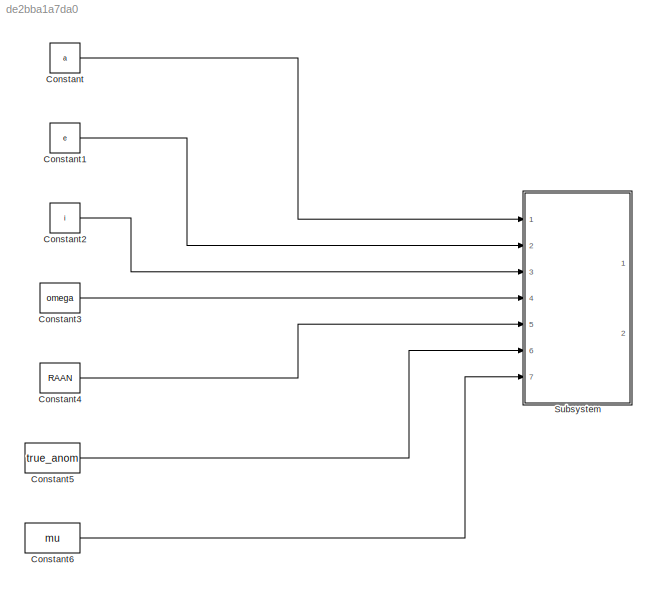
MODEL slx_de2bba1a7da0
KIND model
CONFIG AbsTol = auto
CONFIG EnableMultiTasking = off
CONFIG FixedStep = auto
CONFIG MaxStep = auto
CONFIG MinStep = auto
CONFIG RelTol = 1e-3
CONFIG SampleTimeConstraint = Unconstrained
CONFIG SolverName = VariableStepAuto
CONFIG StartTime = 0.0
CONFIG StopTime = 10.0
BLOCK [Constant] Constant
  Value = a
BLOCK [Constant] Constant1
  Value = e
BLOCK [Constant] Constant2
  Value = i
BLOCK [Constant] Constant3
  Value = omega
BLOCK [Constant] Constant4
  Value = RAAN
BLOCK [Constant] Constant5
  Value = true_anom
BLOCK [Constant] Constant6
  Value = mu
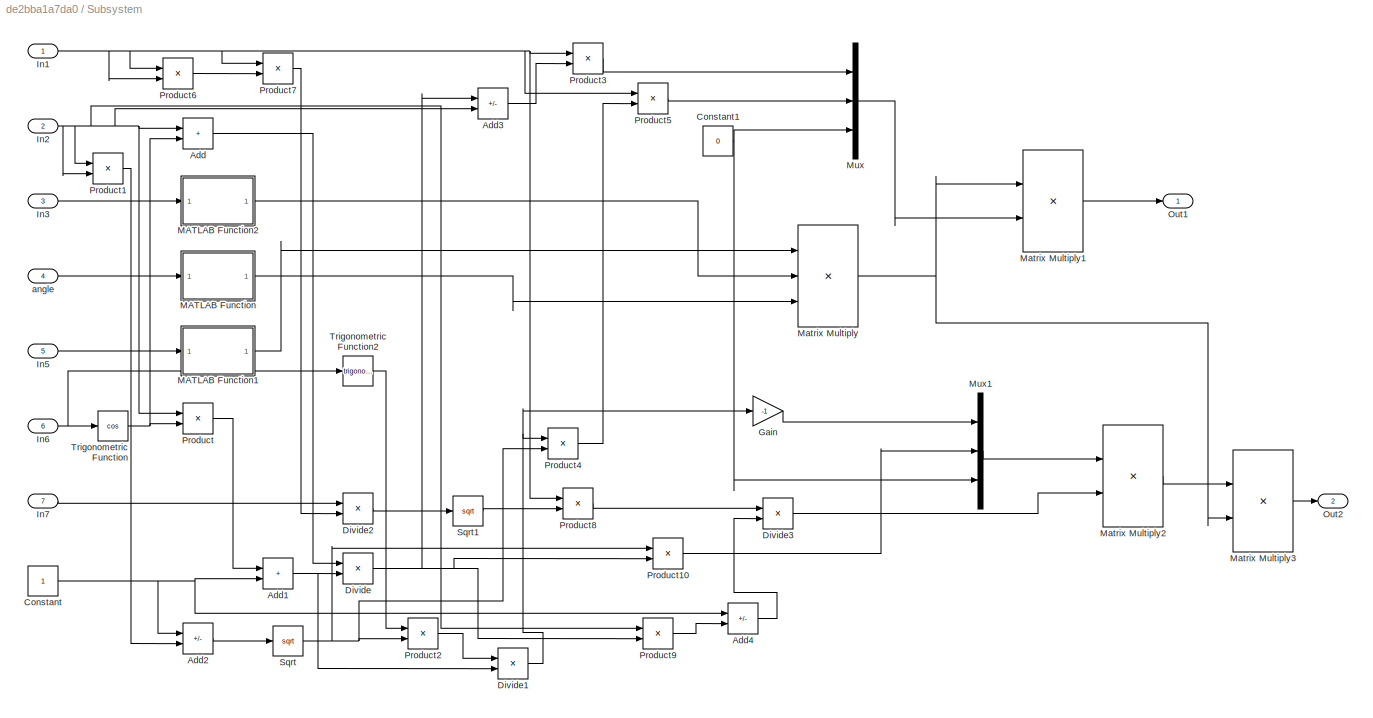
BLOCK [SubSystem] Subsystem
  Ports = [7, 2]
  RequestExecContextInheritance = off
BLOCK [Sum] Subsystem/Add
  IconShape = rectangular
  Ports = [2, 1]
BLOCK [Sum] Subsystem/Add1
  IconShape = rectangular
  Ports = [2, 1]
BLOCK [Sum] Subsystem/Add2
  IconShape = rectangular
  Inputs = +-
  Ports = [2, 1]
BLOCK [Sum] Subsystem/Add3
  IconShape = rectangular
  Inputs = +-
  Ports = [2, 1]
BLOCK [Sum] Subsystem/Add4
  IconShape = rectangular
  Inputs = +-
  Ports = [2, 1]
BLOCK [Constant] Subsystem/Constant
BLOCK [Constant] Subsystem/Constant1
  Value = 0
BLOCK [Product] Subsystem/Divide
  Inputs = */
  Ports = [2, 1]
BLOCK [Product] Subsystem/Divide1
  Inputs = */
  Ports = [2, 1]
BLOCK [Product] Subsystem/Divide2
  Inputs = */
  Ports = [2, 1]
BLOCK [Product] Subsystem/Divide3
  Inputs = */
  Ports = [2, 1]
BLOCK [Gain] Subsystem/Gain
  Gain = -1
BLOCK [Inport] Subsystem/In1
  IconDisplay = Signal name
  Unit = km
  VarSizeSig = Yes
BLOCK [Inport] Subsystem/In2
  Port = 2
BLOCK [Inport] Subsystem/In3
  Port = 3
BLOCK [Inport] Subsystem/In5
  Port = 5
BLOCK [Inport] Subsystem/In6
  Port = 6
BLOCK [Inport] Subsystem/In7
  Port = 7
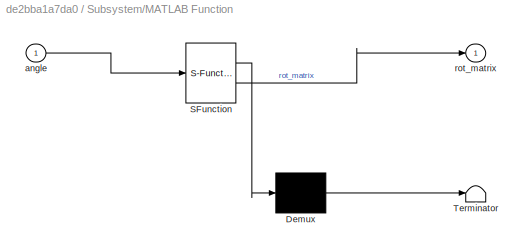
BLOCK [SubSystem] Subsystem/MATLAB Function
  ErrorFcn = Stateflow.Translate.translate
  PermitHierarchicalResolution = ExplicitOnly
  Ports = [1, 1]
  RequestExecContextInheritance = off
  SFBlockType = MATLAB Function
  TreatAsAtomicUnit = on
BLOCK [Demux] Subsystem/MATLAB Function/ Demux 
  Outputs = 1
  Ports = [1, 1]
BLOCK [S-Function] Subsystem/MATLAB Function/ SFunction 
  EnableBusSupport = off
  FunctionName = sf_sfun
  PortCounts = [1 2]
  Ports = [1, 2]
  SFcnIsStateOwnerBlock = off
  SFunctionDeploymentMode = off
  Tag = Stateflow S-Function 2
BLOCK [Terminator] Subsystem/MATLAB Function/ Terminator 
BLOCK [Inport] Subsystem/MATLAB Function/angle
BLOCK [Outport] Subsystem/MATLAB Function/rot_matrix
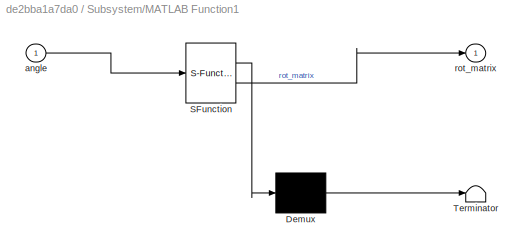
BLOCK [SubSystem] Subsystem/MATLAB Function1
  ErrorFcn = Stateflow.Translate.translate
  PermitHierarchicalResolution = ExplicitOnly
  Ports = [1, 1]
  RequestExecContextInheritance = off
  SFBlockType = MATLAB Function
  TreatAsAtomicUnit = on
BLOCK [Demux] Subsystem/MATLAB Function1/ Demux 
  Outputs = 1
  Ports = [1, 1]
BLOCK [S-Function] Subsystem/MATLAB Function1/ SFunction 
  EnableBusSupport = off
  FunctionName = sf_sfun
  PortCounts = [1 2]
  Ports = [1, 2]
  SFcnIsStateOwnerBlock = off
  SFunctionDeploymentMode = off
  Tag = Stateflow S-Function 1
BLOCK [Terminator] Subsystem/MATLAB Function1/ Terminator 
BLOCK [Inport] Subsystem/MATLAB Function1/angle
BLOCK [Outport] Subsystem/MATLAB Function1/rot_matrix
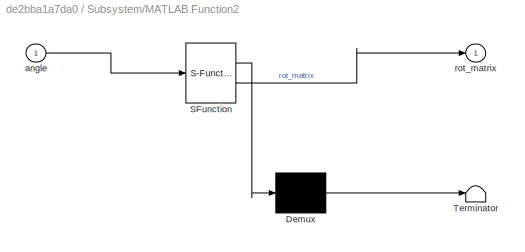
BLOCK [SubSystem] Subsystem/MATLAB Function2
  ErrorFcn = Stateflow.Translate.translate
  PermitHierarchicalResolution = ExplicitOnly
  Ports = [1, 1]
  RequestExecContextInheritance = off
  SFBlockType = MATLAB Function
  TreatAsAtomicUnit = on
BLOCK [Demux] Subsystem/MATLAB Function2/ Demux 
  Outputs = 1
  Ports = [1, 1]
BLOCK [S-Function] Subsystem/MATLAB Function2/ SFunction 
  EnableBusSupport = off
  FunctionName = sf_sfun
  PortCounts = [1 2]
  Ports = [1, 2]
  SFcnIsStateOwnerBlock = off
  SFunctionDeploymentMode = off
  Tag = Stateflow S-Function 3
BLOCK [Terminator] Subsystem/MATLAB Function2/ Terminator 
BLOCK [Inport] Subsystem/MATLAB Function2/angle
BLOCK [Outport] Subsystem/MATLAB Function2/rot_matrix
BLOCK [Product] Subsystem/Matrix Multiply
  Inputs = 3
  Multiplication = Matrix(*)
  Ports = [3, 1]
BLOCK [Product] Subsystem/Matrix Multiply1
  Multiplication = Matrix(*)
  Ports = [2, 1]
BLOCK [Product] Subsystem/Matrix Multiply2
  Ports = [2, 1]
BLOCK [Product] Subsystem/Matrix Multiply3
  Multiplication = Matrix(*)
  Ports = [2, 1]
BLOCK [Mux] Subsystem/Mux
  DisplayOption = bar
  Inputs = 3
  Ports = [3, 1]
BLOCK [Mux] Subsystem/Mux1
  DisplayOption = bar
  Inputs = 3
  Ports = [3, 1]
BLOCK [Outport] Subsystem/Out1
BLOCK [Outport] Subsystem/Out2
  Port = 2
BLOCK [Product] Subsystem/Product
  Ports = [2, 1]
BLOCK [Product] Subsystem/Product1
  Ports = [2, 1]
BLOCK [Product] Subsystem/Product10
  Ports = [2, 1]
BLOCK [Product] Subsystem/Product2
  Ports = [2, 1]
BLOCK [Product] Subsystem/Product3
  Ports = [2, 1]
BLOCK [Product] Subsystem/Product4
  Ports = [2, 1]
BLOCK [Product] Subsystem/Product5
  Ports = [2, 1]
BLOCK [Product] Subsystem/Product6
  Ports = [2, 1]
BLOCK [Product] Subsystem/Product7
  Ports = [2, 1]
BLOCK [Product] Subsystem/Product8
  Ports = [2, 1]
BLOCK [Product] Subsystem/Product9
  Ports = [2, 1]
BLOCK [Sqrt] Subsystem/Sqrt
BLOCK [Sqrt] Subsystem/Sqrt1
BLOCK [Trigonometry] Subsystem/Trigonometric Function
  Operator = cos
  Ports = [1, 1]
BLOCK [Trigonometry] Subsystem/Trigonometric Function2
  Ports = [1, 1]
BLOCK [Inport] Subsystem/angle
  Port = 4
LINE Constant1:1 -> Subsystem:2
LINE Constant2:1 -> Subsystem:3
LINE Constant3:1 -> Subsystem:4
LINE Constant4:1 -> Subsystem:5
LINE Constant5:1 -> Subsystem:6
LINE Constant6:1 -> Subsystem:7
LINE Constant:1 -> Subsystem:1
NET Subsystem/Add1:1 -> Subsystem/Divide1:2, Subsystem/Divide:2
LINE Subsystem/Add2:1 -> Subsystem/Sqrt:1
LINE Subsystem/Add3:1 -> Subsystem/Product3:2
LINE Subsystem/Add4:1 -> Subsystem/Divide3:2
LINE Subsystem/Add:1 -> Subsystem/Divide:1
NET Subsystem/Constant1:1 -> Subsystem/Mux1:3, Subsystem/Mux:3
NET Subsystem/Constant:1 -> Subsystem/Add1:2, Subsystem/Add2:1, Subsystem/Add4:1
NET Subsystem/Divide1:1 -> Subsystem/Gain:1, Subsystem/Product4:1
LINE Subsystem/Divide2:1 -> Subsystem/Sqrt1:1
LINE Subsystem/Divide3:1 -> Subsystem/Matrix Multiply2:2
NET Subsystem/Divide:1 -> Subsystem/Add3:1, Subsystem/Product10:2, Subsystem/Product9:2
LINE Subsystem/Gain:1 -> Subsystem/Mux1:1
NET Subsystem/In1:1 -> Subsystem/Product3:1, Subsystem/Product5:1, Subsystem/Product6:1, Subsystem/Product6:2, Subsystem/Product7:1, Subsystem/Product8:1
NET Subsystem/In2:1 -> Subsystem/Add3:2, Subsystem/Add:1, Subsystem/Product1:1, Subsystem/Product1:2, Subsystem/Product9:1, Subsystem/Product:1
LINE Subsystem/In3:1 -> Subsystem/MATLAB Function2:1
LINE Subsystem/In5:1 -> Subsystem/MATLAB Function1:1
NET Subsystem/In6:1 -> Subsystem/Trigonometric Function2:1, Subsystem/Trigonometric Function:1
LINE Subsystem/In7:1 -> Subsystem/Divide2:1
LINE Subsystem/MATLAB Function1:1 -> Subsystem/Matrix Multiply:1
LINE Subsystem/MATLAB Function2:1 -> Subsystem/Matrix Multiply:2
LINE Subsystem/MATLAB Function:1 -> Subsystem/Matrix Multiply:3
LINE Subsystem/Matrix Multiply1:1 -> Subsystem/Out1:1
LINE Subsystem/Matrix Multiply2:1 -> Subsystem/Matrix Multiply3:1
LINE Subsystem/Matrix Multiply3:1 -> Subsystem/Out2:1
NET Subsystem/Matrix Multiply:1 -> Subsystem/Matrix Multiply1:1, Subsystem/Matrix Multiply3:2
LINE Subsystem/Mux1:1 -> Subsystem/Matrix Multiply2:1
LINE Subsystem/Mux:1 -> Subsystem/Matrix Multiply1:2
LINE Subsystem/Product10:1 -> Subsystem/Mux1:2
LINE Subsystem/Product1:1 -> Subsystem/Add2:2
LINE Subsystem/Product2:1 -> Subsystem/Divide1:1
LINE Subsystem/Product3:1 -> Subsystem/Mux:1
LINE Subsystem/Product4:1 -> Subsystem/Product5:2
LINE Subsystem/Product5:1 -> Subsystem/Mux:2
LINE Subsystem/Product6:1 -> Subsystem/Product7:2
LINE Subsystem/Product7:1 -> Subsystem/Divide2:2
LINE Subsystem/Product8:1 -> Subsystem/Divide3:1
LINE Subsystem/Product9:1 -> Subsystem/Add4:2
LINE Subsystem/Product:1 -> Subsystem/Add1:1
LINE Subsystem/Sqrt1:1 -> Subsystem/Product8:2
NET Subsystem/Sqrt:1 -> Subsystem/Product10:1, Subsystem/Product2:2, Subsystem/Product4:2
LINE Subsystem/Trigonometric Function2:1 -> Subsystem/Product2:1
NET Subsystem/Trigonometric Function:1 -> Subsystem/Add:2, Subsystem/Product:2
LINE Subsystem/angle:1 -> Subsystem/MATLAB Function:1
note: NET lines group one-source signal fan-out (src -> all destinations, sorted); 1:1 wires keep LINE
CHART Subsystem/MATLAB Function states=1 transitions=1
  STATE_LABEL 'eML_blk_kernel()'
  STATE_LABEL 'SCRIPT:\nfunction rot_matrix = rot_z(angle)\nrot_matrix = eye(3);\nrot_matrix(1, 1) = cos(angle);\nrot_matrix(1, 2) = - sin(angle);\nrot_matrix(2, 1) = sin(angle);\nrot_matrix(2, 2) = cos(angle);'
CHART Subsystem/MATLAB Function2 states=1 transitions=1
  STATE_LABEL 'eML_blk_kernel()'
  STATE_LABEL 'SCRIPT:\nfunction rot_matrix = rot_x(angle)\nrot_matrix = eye(3);\nrot_matrix(2, 2) = cos(angle);\nrot_matrix(2, 3) = - sin(angle);\nrot_matrix(3, 2) = sin(angle);\nrot_matrix(3, 3) = cos(angle);\n'
CHART Subsystem/MATLAB Function1 states=1 transitions=1
  STATE_LABEL 'eML_blk_kernel()'
  STATE_LABEL 'SCRIPT:\nfunction rot_matrix = rot_z(angle)\nrot_matrix = eye(3);\nrot_matrix(1, 1) = cos(angle);\nrot_matrix(1, 2) = - sin(angle);\nrot_matrix(2, 1) = sin(angle);\nrot_matrix(2, 2) = cos(angle);'
CHART  states=0 transitions=0
CHART  states=0 transitions=0
CHART  states=0 transitions=0
